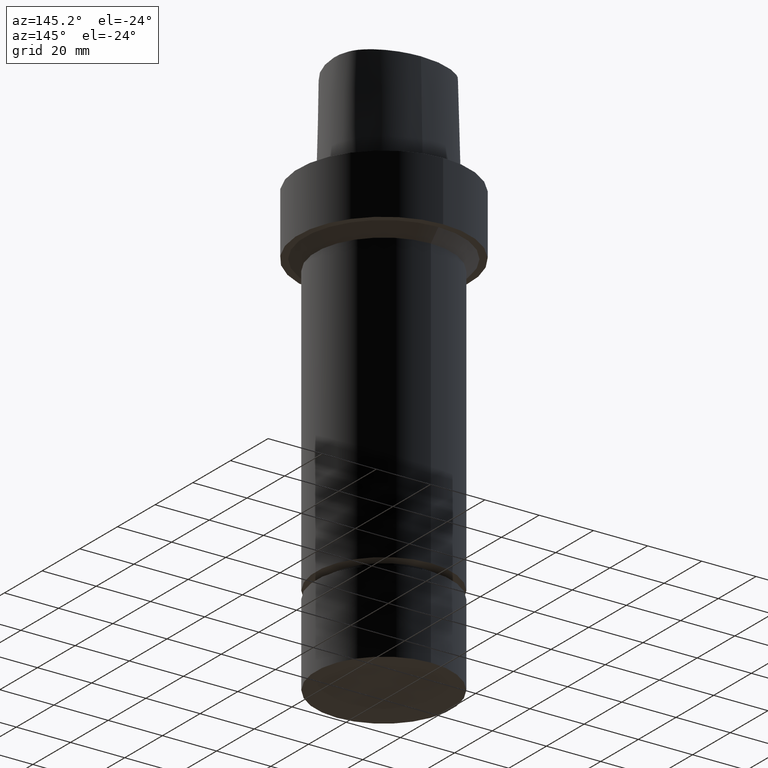
[diagram: clean part render]
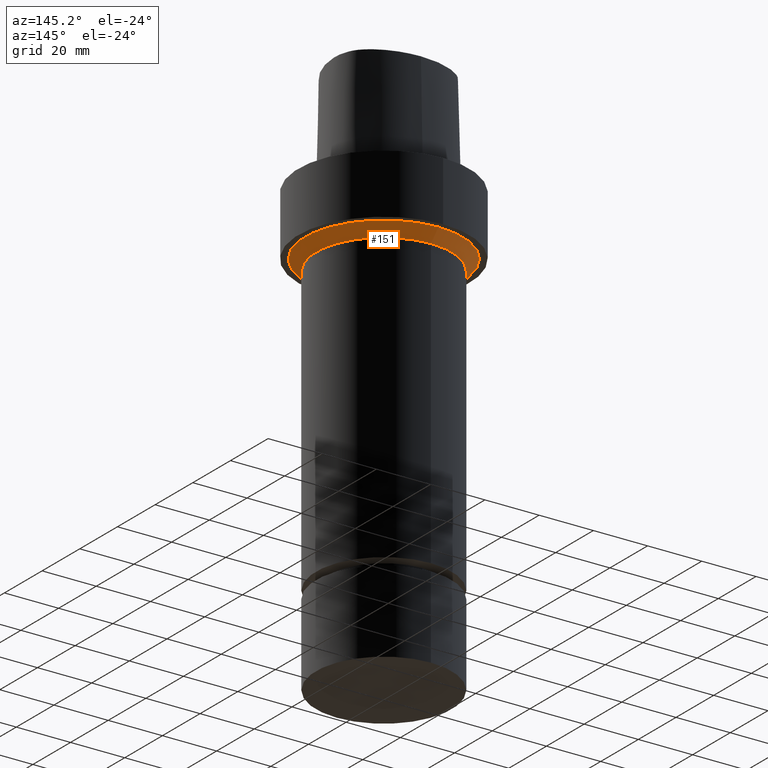
[diagram: same view with one face highlighted and labeled with its STEP entity id]
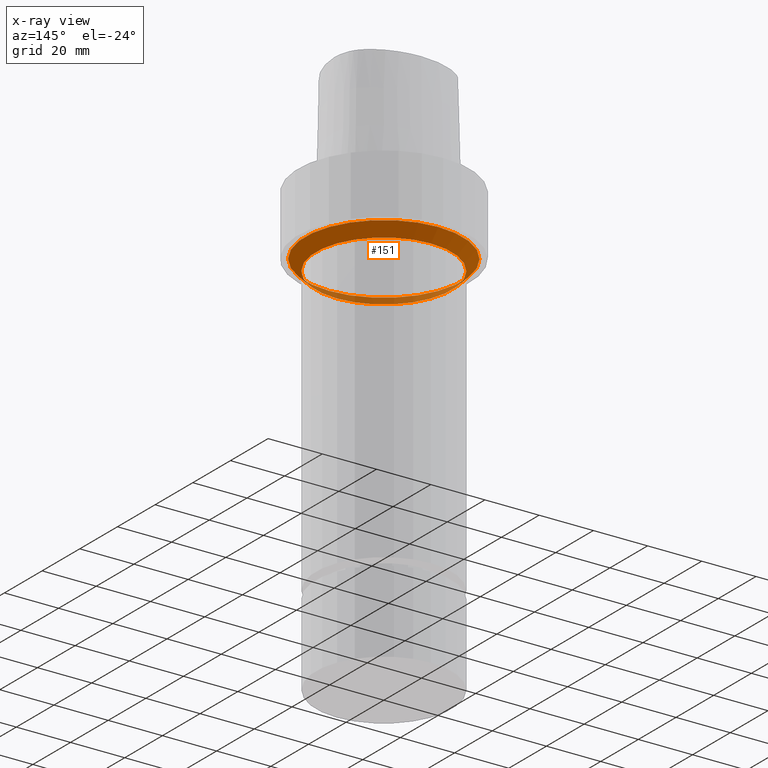
[diagram: x-ray of the same camera — body ghosted, the highlighted face saturated]
A machine part, auxiliary view. The second image highlights one B-rep face of the part: STEP entity #151.
The next image is the same camera in x-ray: the body ghosted, the highlighted face saturated — about 18% of this face is hidden behind the body in this view.
In plain terms, the highlighted conical surface has half-angle 45 deg.
Its self-contained STEP definition (entity closure, byte-faithful):
#94=EDGE_CURVE('Unnamed[1]',#224,#224,#225,.T.);
#138=EDGE_CURVE('Unnamed[1]',#289,#289,#290,.T.);
#151=ADVANCED_FACE('Unnamed[1]',(#307,#308),#309,.T.);
#224=VERTEX_POINT('',#423);
#225=CIRCLE('',#424,24.9999999999996);
#289=VERTEX_POINT('',#574);
#290=CIRCLE('',#575,28.9999999999996);
#307=FACE_BOUND('',#612,.T.);
#308=FACE_BOUND('',#613,.T.);
#309=CONICAL_SURFACE('',#614,26.9999999999996,0.785398163397451);
#423=CARTESIAN_POINT('',(1.59204083889159E-015,24.9999999999996,-26.0000000000006));
#424=AXIS2_PLACEMENT_3D('',#764,#765,#766);
#574=CARTESIAN_POINT('',(1.34711147906212E-015,28.9999999999996,-22.0000000000006));
#575=AXIS2_PLACEMENT_3D('',#833,#834,#835);
#612=EDGE_LOOP('',(#852));
#613=EDGE_LOOP('',(#853));
#614=AXIS2_PLACEMENT_3D('',#854,#855,#856);
#764=CARTESIAN_POINT('',(1.59204083889159E-015,3.18408167778319E-015,-26.0000000000006));
#765=DIRECTION('',(6.12323399573677E-017,1.22464679914735E-016,-1.0));
#766=DIRECTION('',(-1.23259516440783E-032,1.0,1.22464679914735E-016));
#833=CARTESIAN_POINT('',(1.34711147906212E-015,2.69422295812425E-015,-22.0000000000006));
#834=DIRECTION('',(6.12323399573677E-017,1.22464679914735E-016,-1.0));
#835=DIRECTION('',(-1.23259516440783E-032,1.0,1.22464679914735E-016));
#852=ORIENTED_EDGE('',*,*,#94,.F.);
#853=ORIENTED_EDGE('',*,*,#138,.T.);
#854=CARTESIAN_POINT('',(1.46957615897686E-015,2.93915231795372E-015,-24.0000000000006));
#855=DIRECTION('',(-6.12323399573677E-017,-1.22464679914735E-016,1.0));
#856=DIRECTION('',(-1.23259516440783E-032,1.0,1.22464679914735E-016));